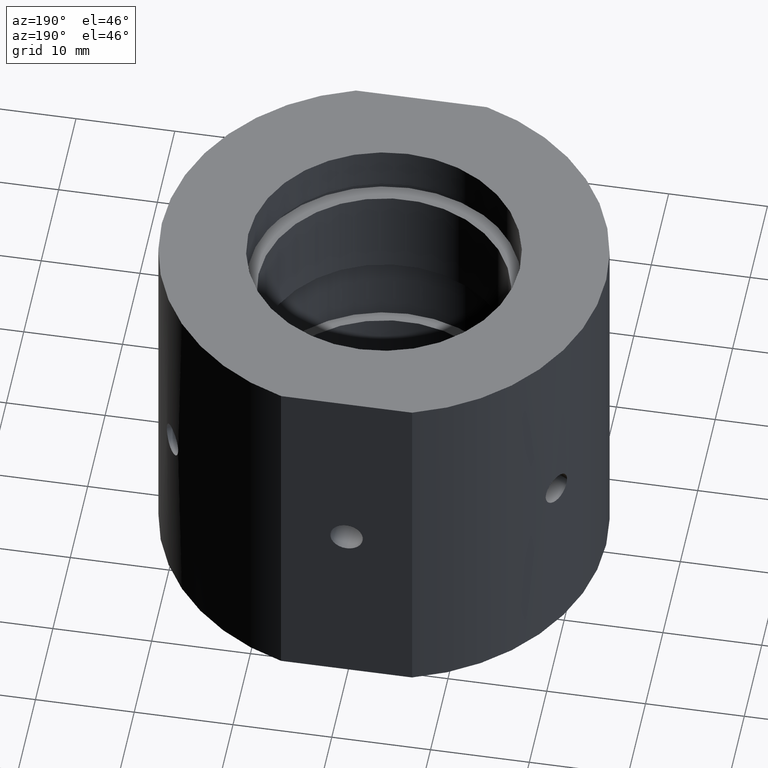
[diagram: clean part render]
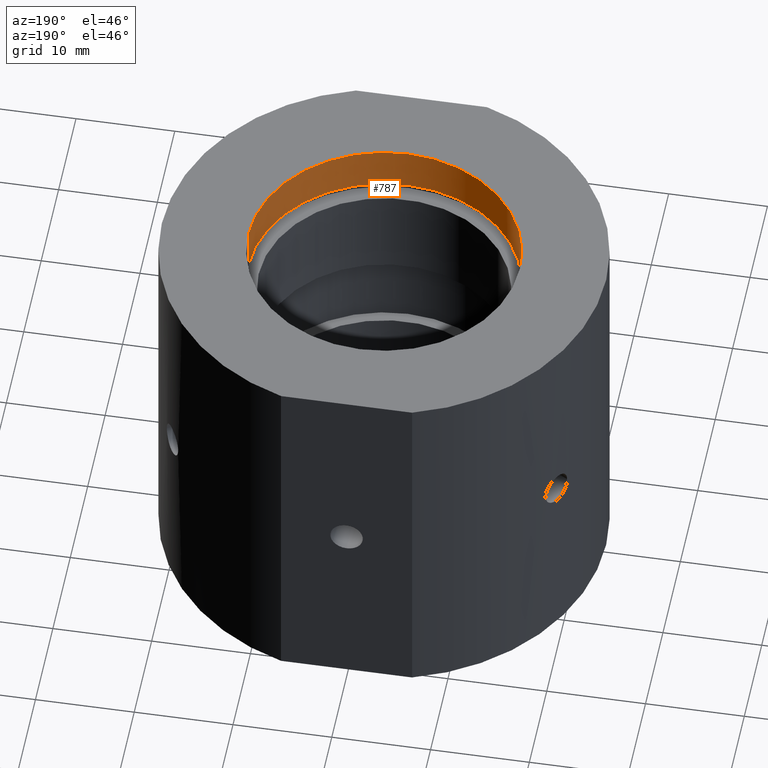
[diagram: same view with one face highlighted and labeled with its STEP entity id]
A machine part, auxiliary view. The second image highlights one B-rep face of the part: STEP entity #787.
In plain terms, the highlighted cylindrical surface (partial cylindrical patch) has radius 13.75 mm, axis along (-0, -0, -1).
Its self-contained STEP definition (entity closure, byte-faithful):
#12 = CARTESIAN_POINT ( 'NONE',  ( 13.75000000000000200, 1.683889348827611000E-015, -31.93906810035839800 ) ) ;
#209 = VERTEX_POINT ( 'NONE', #321 ) ;
#224 = EDGE_CURVE ( 'NONE', #1250, #209, #1049, .T. ) ;
#321 = CARTESIAN_POINT ( 'NONE',  ( -13.74999999999999600, 0.0000000000000000000, 14.50000000000000000 ) ) ;
#338 = DIRECTION ( 'NONE',  ( -1.224646799147350500E-016, -0.0000000000000000000, -1.000000000000000000 ) ) ;
#350 = CARTESIAN_POINT ( 'NONE',  ( 0.0000000000000000000, 0.0000000000000000000, -31.93906810035839800 ) ) ;
#354 = CARTESIAN_POINT ( 'NONE',  ( -13.74999999999999300, 0.0000000000000000000, 18.99999999999999600 ) ) ;
#388 = LINE ( 'NONE', #1346, #1278 ) ;
#432 = DIRECTION ( 'NONE',  ( -1.000000000000000000, 0.0000000000000000000, 1.261617073437677800E-016 ) ) ;
#443 = DIRECTION ( 'NONE',  ( -1.224646799147350500E-016, -0.0000000000000000000, -1.000000000000000000 ) ) ;
#447 = CARTESIAN_POINT ( 'NONE',  ( 6.238236670065281400E-015, 0.0000000000000000000, 18.99999999999999600 ) ) ;
#573 = DIRECTION ( 'NONE',  ( -1.000000000000000000, 0.0000000000000000000, 0.0000000000000000000 ) ) ;
#612 = VECTOR ( 'NONE', #778, 1000.000000000000000 ) ;
#663 = EDGE_CURVE ( 'NONE', #684, #209, #388, .T. ) ;
#679 = AXIS2_PLACEMENT_3D ( 'NONE', #970, #1092, #432 ) ;
#684 = VERTEX_POINT ( 'NONE', #354 ) ;
#733 = ORIENTED_EDGE ( 'NONE', *, *, #224, .T. ) ;
#735 = EDGE_CURVE ( 'NONE', #860, #1250, #793, .T. ) ;
#778 = DIRECTION ( 'NONE',  ( -1.224646799147350500E-016, -0.0000000000000000000, -1.000000000000000000 ) ) ;
#787 = ADVANCED_FACE ( 'NONE', ( #1441 ), #1339, .F. ) ;
#793 = LINE ( 'NONE', #12, #612 ) ;
#860 = VERTEX_POINT ( 'NONE', #1230 ) ;
#898 = ORIENTED_EDGE ( 'NONE', *, *, #735, .T. ) ;
#899 = DIRECTION ( 'NONE',  ( -1.224646799147350500E-016, -0.0000000000000000000, -1.000000000000000000 ) ) ;
#923 = AXIS2_PLACEMENT_3D ( 'NONE', #447, #443, #987 ) ;
#970 = CARTESIAN_POINT ( 'NONE',  ( 5.687145610448973200E-015, 0.0000000000000000000, 14.49999999999999800 ) ) ;
#987 = DIRECTION ( 'NONE',  ( -1.000000000000000000, 0.0000000000000000000, 0.0000000000000000000 ) ) ;
#1043 = EDGE_LOOP ( 'NONE', ( #1112, #898, #733, #1047 ) ) ;
#1047 = ORIENTED_EDGE ( 'NONE', *, *, #663, .F. ) ;
#1049 = CIRCLE ( 'NONE', #679, 13.75000000000000200 ) ;
#1088 = CARTESIAN_POINT ( 'NONE',  ( 13.75000000000000700, 1.683889348827611000E-015, 14.49999999999999600 ) ) ;
#1092 = DIRECTION ( 'NONE',  ( -1.224646799147350500E-016, -0.0000000000000000000, -1.000000000000000000 ) ) ;
#1112 = ORIENTED_EDGE ( 'NONE', *, *, #1372, .F. ) ;
#1230 = CARTESIAN_POINT ( 'NONE',  ( 13.75000000000000700, 1.683889348827611000E-015, 18.99999999999999600 ) ) ;
#1250 = VERTEX_POINT ( 'NONE', #1088 ) ;
#1254 = AXIS2_PLACEMENT_3D ( 'NONE', #350, #338, #573 ) ;
#1278 = VECTOR ( 'NONE', #899, 1000.000000000000000 ) ;
#1333 = CIRCLE ( 'NONE', #923, 13.75000000000000000 ) ;
#1339 = CYLINDRICAL_SURFACE ( 'NONE', #1254, 13.75000000000000200 ) ;
#1346 = CARTESIAN_POINT ( 'NONE',  ( -13.75000000000000200, 0.0000000000000000000, -31.93906810035839800 ) ) ;
#1372 = EDGE_CURVE ( 'NONE', #860, #684, #1333, .T. ) ;
#1441 = FACE_OUTER_BOUND ( 'NONE', #1043, .T. ) ;